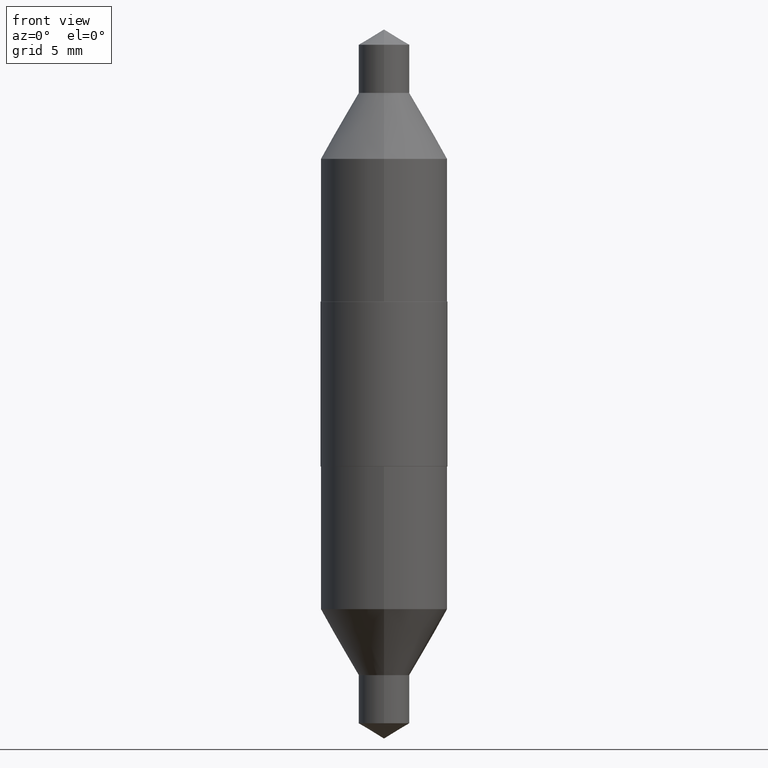
[diagram: clean part render]
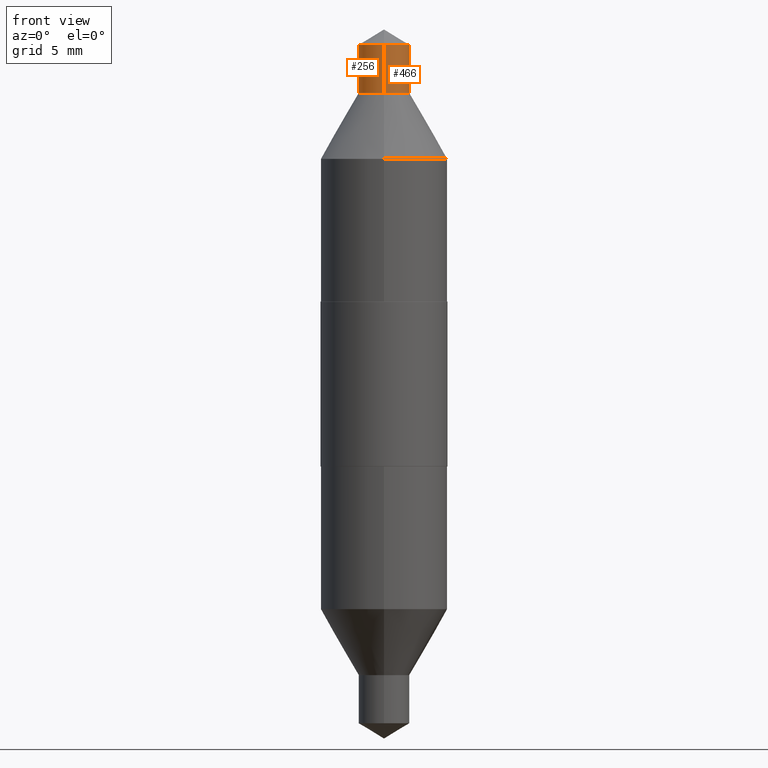
[diagram: same view with one multi-face feature highlighted, each face labeled with its STEP entity id]
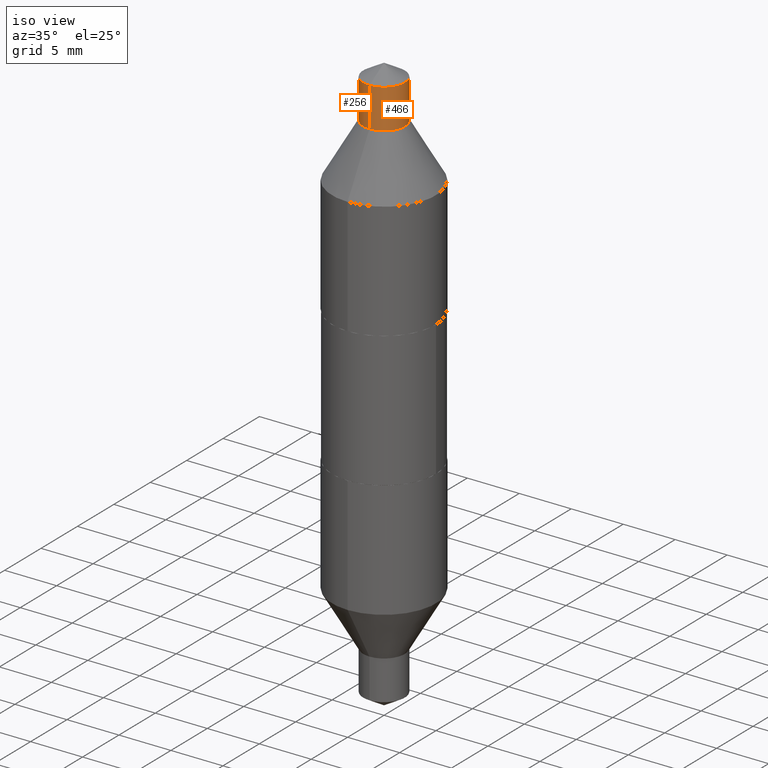
[diagram: same view with one multi-face feature highlighted, each face labeled with its STEP entity id]
A machine part, front view. The highlighted faces form ONE feature: a constant-radius fillet chain: 2 tangent blend faces with common blend radius 2.0003 mm. The faces share edges in the B-rep.
A second angle (iso view) of the same feature is appended — it is thin or edge-on in the first view.
Their STEP definitions:
[1] entity #466 (Cylinder):
#2 = LINE ( 'NONE', #488, #254 ) ;
#6 = DIRECTION ( 'NONE',  ( 2.459654028991430125E-29, -3.471167292411791598E-15, -1.000000000000000000 ) ) ;
#90 = DIRECTION ( 'NONE',  ( 2.459654028991429845E-29, -3.471167292411791598E-15, -1.000000000000000000 ) ) ;
#96 = CARTESIAN_POINT ( 'NONE',  ( -2.217682136543749536E-29, 3.140011577663515512E-15, 0.9031000000000001249 ) ) ;
#106 = VERTEX_POINT ( 'NONE', #465 ) ;
#130 = DIRECTION ( 'NONE',  ( -6.982962677686264344E-15, -1.000000000000000000, 3.469013325287953293E-15 ) ) ;
#167 = CIRCLE ( 'NONE', #635, 0.07875000000000001443 ) ;
#168 = ORIENTED_EDGE ( 'NONE', *, *, #208, .T. ) ;
#174 = LINE ( 'NONE', #295, #305 ) ;
#183 = CARTESIAN_POINT ( 'NONE',  ( -2.585602662008955522E-29, 3.659236508954140551E-15, 1.052682226251580033 ) ) ;
#198 = CARTESIAN_POINT ( 'NONE',  ( -6.260400143833954547E-30, 8.938192227438459176E-16, 0.2560000000000002274 ) ) ;
#208 = EDGE_CURVE ( 'NONE', #106, #321, #174, .T. ) ;
#235 = DIRECTION ( 'NONE',  ( 2.459654028991430125E-29, -3.471167292411791598E-15, -1.000000000000000000 ) ) ;
#236 = VERTEX_POINT ( 'NONE', #350 ) ;
#254 = VECTOR ( 'NONE', #6, 39.37007874015748143 ) ;
#257 = EDGE_LOOP ( 'NONE', ( #397, #519, #168, #585 ) ) ;
#295 = CARTESIAN_POINT ( 'NONE',  ( -5.499083108677997552E-16, -0.07874999999999912625, 0.2560000000000005049 ) ) ;
#302 = AXIS2_PLACEMENT_3D ( 'NONE', #96, #629, #130 ) ;
#305 = VECTOR ( 'NONE', #235, 39.37007874015748143 ) ;
#321 = VERTEX_POINT ( 'NONE', #672 ) ;
#325 = EDGE_CURVE ( 'NONE', #106, #331, #167, .T. ) ;
#331 = VERTEX_POINT ( 'NONE', #692 ) ;
#350 = CARTESIAN_POINT ( 'NONE',  ( 5.402642173244840266E-16, 0.07875000000000313694, 0.9030999999999999028 ) ) ;
#353 = EDGE_CURVE ( 'NONE', #321, #236, #656, .T. ) ;
#397 = ORIENTED_EDGE ( 'NONE', *, *, #622, .F. ) ;
#405 = DIRECTION ( 'NONE',  ( -2.459654028991429845E-29, 3.471167292411791598E-15, 1.000000000000000000 ) ) ;
#465 = CARTESIAN_POINT ( 'NONE',  ( -5.499083108678193781E-16, -0.07874999999999636457, 1.052682226251580477 ) ) ;
#466 = ADVANCED_FACE ( 'NONE', ( #477 ), #577, .T. ) ;
#477 = FACE_OUTER_BOUND ( 'NONE', #257, .T. ) ;
#488 = CARTESIAN_POINT ( 'NONE',  ( 5.402642173245019732E-16, 0.07875000000000090261, 0.2559999999999999498 ) ) ;
#519 = ORIENTED_EDGE ( 'NONE', *, *, #325, .F. ) ;
#529 = DIRECTION ( 'NONE',  ( -6.982962677686264344E-15, -1.000000000000000000, 3.469013325287952504E-15 ) ) ;
#539 = AXIS2_PLACEMENT_3D ( 'NONE', #198, #90, #529 ) ;
#577 = CYLINDRICAL_SURFACE ( 'NONE', #539, 0.07875000000000001443 ) ;
#585 = ORIENTED_EDGE ( 'NONE', *, *, #353, .T. ) ;
#621 = DIRECTION ( 'NONE',  ( -6.982962677686264344E-15, -1.000000000000000000, 3.469013325287952504E-15 ) ) ;
#622 = EDGE_CURVE ( 'NONE', #331, #236, #2, .T. ) ;
#629 = DIRECTION ( 'NONE',  ( -2.459654028991429845E-29, 3.471167292411791598E-15, 1.000000000000000000 ) ) ;
#635 = AXIS2_PLACEMENT_3D ( 'NONE', #183, #405, #621 ) ;
#656 = CIRCLE ( 'NONE', #302, 0.07875000000000000056 ) ;
#672 = CARTESIAN_POINT ( 'NONE',  ( -5.499083108678155324E-16, -0.07874999999999685030, 0.9031000000000003469 ) ) ;
#692 = CARTESIAN_POINT ( 'NONE',  ( 5.402642173244822517E-16, 0.07875000000000366429, 1.052682226251579811 ) ) ;
[2] entity #256 (Cylinder):
#2 = LINE ( 'NONE', #488, #254 ) ;
#6 = DIRECTION ( 'NONE',  ( 2.459654028991430125E-29, -3.471167292411791598E-15, -1.000000000000000000 ) ) ;
#7 = AXIS2_PLACEMENT_3D ( 'NONE', #563, #497, #79 ) ;
#34 = CARTESIAN_POINT ( 'NONE',  ( -2.585602662008955522E-29, 3.659236508954140551E-15, 1.052682226251580033 ) ) ;
#46 = DIRECTION ( 'NONE',  ( -2.459654028991429845E-29, 3.471167292411791598E-15, 1.000000000000000000 ) ) ;
#77 = CARTESIAN_POINT ( 'NONE',  ( -6.260400143833954547E-30, 8.938192227438459176E-16, 0.2560000000000002274 ) ) ;
#79 = DIRECTION ( 'NONE',  ( -6.982962677686264344E-15, -1.000000000000000000, 3.469013325287953293E-15 ) ) ;
#106 = VERTEX_POINT ( 'NONE', #465 ) ;
#174 = LINE ( 'NONE', #295, #305 ) ;
#208 = EDGE_CURVE ( 'NONE', #106, #321, #174, .T. ) ;
#235 = DIRECTION ( 'NONE',  ( 2.459654028991430125E-29, -3.471167292411791598E-15, -1.000000000000000000 ) ) ;
#236 = VERTEX_POINT ( 'NONE', #350 ) ;
#239 = FACE_OUTER_BOUND ( 'NONE', #284, .T. ) ;
#244 = DIRECTION ( 'NONE',  ( 2.459654028991429845E-29, -3.471167292411791598E-15, -1.000000000000000000 ) ) ;
#248 = DIRECTION ( 'NONE',  ( -6.982962677686264344E-15, -1.000000000000000000, 3.469013325287952504E-15 ) ) ;
#253 = AXIS2_PLACEMENT_3D ( 'NONE', #34, #46, #248 ) ;
#254 = VECTOR ( 'NONE', #6, 39.37007874015748143 ) ;
#256 = ADVANCED_FACE ( 'NONE', ( #239 ), #341, .T. ) ;
#278 = ORIENTED_EDGE ( 'NONE', *, *, #683, .T. ) ;
#284 = EDGE_LOOP ( 'NONE', ( #598, #441, #278, #320 ) ) ;
#295 = CARTESIAN_POINT ( 'NONE',  ( -5.499083108677997552E-16, -0.07874999999999912625, 0.2560000000000005049 ) ) ;
#305 = VECTOR ( 'NONE', #235, 39.37007874015748143 ) ;
#320 = ORIENTED_EDGE ( 'NONE', *, *, #208, .F. ) ;
#321 = VERTEX_POINT ( 'NONE', #672 ) ;
#331 = VERTEX_POINT ( 'NONE', #692 ) ;
#338 = CIRCLE ( 'NONE', #7, 0.07875000000000000056 ) ;
#341 = CYLINDRICAL_SURFACE ( 'NONE', #560, 0.07875000000000001443 ) ;
#350 = CARTESIAN_POINT ( 'NONE',  ( 5.402642173244840266E-16, 0.07875000000000313694, 0.9030999999999999028 ) ) ;
#441 = ORIENTED_EDGE ( 'NONE', *, *, #622, .T. ) ;
#451 = DIRECTION ( 'NONE',  ( -6.982962677686264344E-15, -1.000000000000000000, 3.469013325287952504E-15 ) ) ;
#465 = CARTESIAN_POINT ( 'NONE',  ( -5.499083108678193781E-16, -0.07874999999999636457, 1.052682226251580477 ) ) ;
#467 = CIRCLE ( 'NONE', #253, 0.07875000000000001443 ) ;
#487 = EDGE_CURVE ( 'NONE', #331, #106, #467, .T. ) ;
#488 = CARTESIAN_POINT ( 'NONE',  ( 5.402642173245019732E-16, 0.07875000000000090261, 0.2559999999999999498 ) ) ;
#497 = DIRECTION ( 'NONE',  ( -2.459654028991429845E-29, 3.471167292411791598E-15, 1.000000000000000000 ) ) ;
#560 = AXIS2_PLACEMENT_3D ( 'NONE', #77, #244, #451 ) ;
#563 = CARTESIAN_POINT ( 'NONE',  ( -2.217682136543749536E-29, 3.140011577663515512E-15, 0.9031000000000001249 ) ) ;
#598 = ORIENTED_EDGE ( 'NONE', *, *, #487, .F. ) ;
#622 = EDGE_CURVE ( 'NONE', #331, #236, #2, .T. ) ;
#672 = CARTESIAN_POINT ( 'NONE',  ( -5.499083108678155324E-16, -0.07874999999999685030, 0.9031000000000003469 ) ) ;
#683 = EDGE_CURVE ( 'NONE', #236, #321, #338, .T. ) ;
#692 = CARTESIAN_POINT ( 'NONE',  ( 5.402642173244822517E-16, 0.07875000000000366429, 1.052682226251579811 ) ) ;